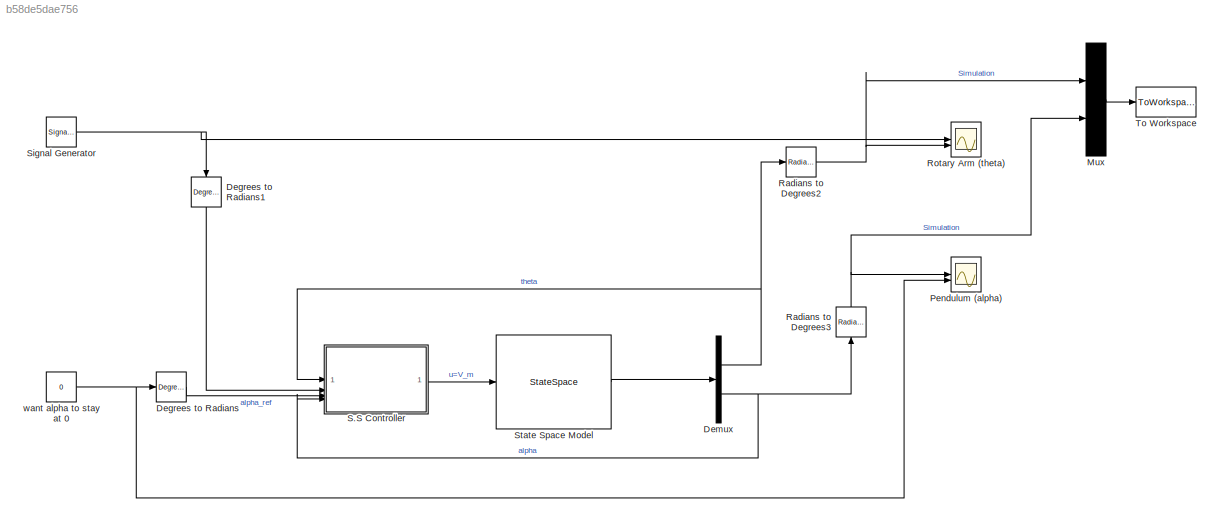
MODEL slx_b58de5dae756
KIND model
CONFIG AbsTol = auto
CONFIG EnableMultiTasking = on
CONFIG FixedStep = 0.002
CONFIG MaxStep = auto
CONFIG MinStep = auto
CONFIG RelTol = 1e-3
CONFIG SampleTimeConstraint = Unconstrained
CONFIG SolverName = ode1
CONFIG StartTime = 0.0
CONFIG StopTime = 80
BLOCK [Reference] Degrees to Radians  REF=simulink_extras/Transformations/Degrees to
Radians
  SourceBlock = simulink_extras/Transformations/Degrees to\nRadians
  SourceType = DegreesToRadians
BLOCK [Reference] Degrees to Radians1  REF=simulink_extras/Transformations/Degrees to
Radians
  NameLocation = left
  SourceBlock = simulink_extras/Transformations/Degrees to\nRadians
  SourceType = DegreesToRadians
BLOCK [Demux] Demux
  Outputs = 2
BLOCK [Mux] Mux
  DisplayOption = bar
  Inputs = 2
BLOCK [Scope] Pendulum (alpha)
  ActiveDisplayYMaximum = 75.172180728788376
  ActiveDisplayYMinimum = -73.031542967109559
  DataLoggingDecimateData = on
  DataLoggingDecimation = 1
  DataLoggingLimitDataPoints = on
  DataLoggingMaxPoints = 50000
  DataLoggingSaveFormat = Structure With Time
  Floating = off
  GraphicalSettings = {"AxesScalingProperties":{"AlignXAxis":"Center","AlignYAxis":"Center","AutoScaleXAxisLimits":false,"AxesScaling":"Manual","AxesScalingNumUpdates":10,"ExpandOnly":true,"ScaleAxesLimitsAtStop":false,"XAxisDataRange":100,"YAxisDataRange":80},"DisplayProperties":{"ColorOrder":["auto","auto","auto","auto","auto","auto","auto","auto","auto","auto","auto","auto","auto","auto","auto","auto","auto","auto",...<+2139ch>
  MultipleDisplayCache = [{"MaxYLimMag":40.97753,"MaxYLimReal":75.172180728788376,"MinYLimMag":0,"MinYLimReal":-73.031542967109559,"PlotAsMagnitudePhase":false,"ShowGrid":true,"ShowLegend":true,"Title":"%<SignalLabel>","YLabel":""}]
  NumInputPorts = 2
  ScopeFrameLocation = window
  ShowLegend = on
  TimeSpan = 40
  Visible = on
  WasSavedAsWebScope = on
  WindowPosition = [0.000000,36.000000,1920.000000,1009.000000,]
BLOCK [Reference] Radians to Degrees2  REF=simulink_extras/Transformations/Radians
to Degrees
  SourceBlock = simulink_extras/Transformations/Radians\nto Degrees
  SourceType = RadiansToDegrees
BLOCK [Reference] Radians to Degrees3  REF=simulink_extras/Transformations/Radians
to Degrees
  NameLocation = right
  SourceBlock = simulink_extras/Transformations/Radians\nto Degrees
  SourceType = RadiansToDegrees
BLOCK [Scope] Rotary Arm (theta)
  ActiveDisplayYMaximum = 30.3214691580459
  ActiveDisplayYMinimum = 20.02501530407962
  DataLoggingDecimateData = on
  DataLoggingDecimation = 1
  DataLoggingLimitDataPoints = on
  DataLoggingMaxPoints = 50000
  DataLoggingSaveFormat = Structure With Time
  DataLoggingVariableName = ScopeData1
  Floating = off
  GraphicalSettings = {"Style":{"BackgroundColor":[0.12941176470588237,0.12941176470588237,0.12941176470588237],"AxesColor":[0.07058823529411765,0.07058823529411765,0.07058823529411765],"LabelsColor":[0.8509803921568627,0.8509803921568627,0.8509803921568627],"PreserveColors":false,"Visible":[true,true],"LineStyle":["-","-"],"LineWidth":[1.5,1.5],"BarWidth":[0.9,0.9],"LineColor":["auto","auto"],"LineFaceAlpha":[1,1],"Li...<+2110ch>
  MultipleDisplayCache = [{"MaxYLimMag":50.80078,"MaxYLimReal":30.3214691580459,"MinYLimMag":0,"MinYLimReal":20.02501530407962,"PlotAsMagnitudePhase":false,"ShowGrid":true,"ShowLegend":true,"Title":"%<SignalLabel>","YLabel":""}]
  NumInputPorts = 2
  ScopeFrameLocation = window
  ShowLegend = on
  TimeSpan = 40
  Visible = on
  WasSavedAsWebScope = on
  WindowPosition = [1088.000000,449.000000,763.000000,508.000000,]
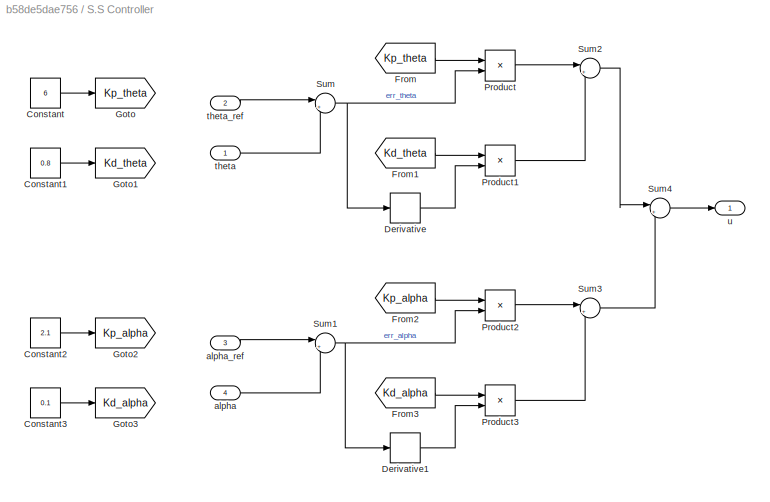
BLOCK [SubSystem] S.S Controller
BLOCK [Constant] S.S Controller/Constant
  Value = 6
BLOCK [Constant] S.S Controller/Constant1
  Value = 0.8
BLOCK [Constant] S.S Controller/Constant2
  Value = 2.1
BLOCK [Constant] S.S Controller/Constant3
  Value = 0.1
BLOCK [Derivative] S.S Controller/Derivative
BLOCK [Derivative] S.S Controller/Derivative1
BLOCK [From] S.S Controller/From
  GotoTag = Kp_theta
BLOCK [From] S.S Controller/From1
  GotoTag = Kd_theta
BLOCK [From] S.S Controller/From2
  GotoTag = Kp_alpha
BLOCK [From] S.S Controller/From3
  GotoTag = Kd_alpha
BLOCK [Goto] S.S Controller/Goto
  GotoTag = Kp_theta
BLOCK [Goto] S.S Controller/Goto1
  GotoTag = Kd_theta
BLOCK [Goto] S.S Controller/Goto2
  GotoTag = Kp_alpha
BLOCK [Goto] S.S Controller/Goto3
  GotoTag = Kd_alpha
BLOCK [Product] S.S Controller/Product
BLOCK [Product] S.S Controller/Product1
BLOCK [Product] S.S Controller/Product2
BLOCK [Product] S.S Controller/Product3
BLOCK [Sum] S.S Controller/Sum
  Inputs = |+-
BLOCK [Sum] S.S Controller/Sum1
  Inputs = |+-
BLOCK [Sum] S.S Controller/Sum2
  Inputs = |++
BLOCK [Sum] S.S Controller/Sum3
  Inputs = |++
BLOCK [Sum] S.S Controller/Sum4
  Inputs = |++
BLOCK [Inport] S.S Controller/alpha
  Port = 4
BLOCK [Inport] S.S Controller/alpha_ref
  Port = 3
BLOCK [Inport] S.S Controller/theta
BLOCK [Inport] S.S Controller/theta_ref
  Port = 2
BLOCK [Outport] S.S Controller/u
BLOCK [SignalGenerator] Signal Generator
  Amplitude = 25
  Frequency = 0.05
  WaveForm = square
BLOCK [StateSpace] State Space Model
  A = A1
  B = B1
  C = C1
  D = D1
  InitialCondition = 0
BLOCK [ToWorkspace] To Workspace
  MaxDataPoints = inf
  SampleTime = -1
  SaveFormat = Structure With Time
  VariableName = simout
BLOCK [Constant] want alpha to stay at 0
  Value = 0
LINE Degrees to Radians1:1 -> S.S Controller:2
LINE Degrees to Radians:1 -> S.S Controller:3
NET Demux:1 -> Radians to Degrees2:1, S.S Controller:1
NET Demux:2 -> Radians to Degrees3:1, S.S Controller:4
LINE Mux:1 -> To Workspace:1
NET Radians to Degrees2:1 -> Mux:1, Rotary Arm (theta):2
NET Radians to Degrees3:1 -> Mux:2, Pendulum (alpha):1
LINE S.S Controller/Constant1:1 -> S.S Controller/Goto1:1
LINE S.S Controller/Constant2:1 -> S.S Controller/Goto2:1
LINE S.S Controller/Constant3:1 -> S.S Controller/Goto3:1
LINE S.S Controller/Constant:1 -> S.S Controller/Goto:1
LINE S.S Controller/Derivative1:1 -> S.S Controller/Product3:2
LINE S.S Controller/Derivative:1 -> S.S Controller/Product1:2
LINE S.S Controller/From1:1 -> S.S Controller/Product1:1
LINE S.S Controller/From2:1 -> S.S Controller/Product2:1
LINE S.S Controller/From3:1 -> S.S Controller/Product3:1
LINE S.S Controller/From:1 -> S.S Controller/Product:1
LINE S.S Controller/Product1:1 -> S.S Controller/Sum2:2
LINE S.S Controller/Product2:1 -> S.S Controller/Sum3:1
LINE S.S Controller/Product3:1 -> S.S Controller/Sum3:2
LINE S.S Controller/Product:1 -> S.S Controller/Sum2:1
NET S.S Controller/Sum1:1 -> S.S Controller/Derivative1:1, S.S Controller/Product2:2
LINE S.S Controller/Sum2:1 -> S.S Controller/Sum4:1
LINE S.S Controller/Sum3:1 -> S.S Controller/Sum4:2
LINE S.S Controller/Sum4:1 -> S.S Controller/u:1
NET S.S Controller/Sum:1 -> S.S Controller/Derivative:1, S.S Controller/Product:2
LINE S.S Controller/alpha:1 -> S.S Controller/Sum1:2
LINE S.S Controller/alpha_ref:1 -> S.S Controller/Sum1:1
LINE S.S Controller/theta:1 -> S.S Controller/Sum:2
LINE S.S Controller/theta_ref:1 -> S.S Controller/Sum:1
LINE S.S Controller:1 -> State Space Model:1
NET Signal Generator:1 -> Degrees to Radians1:1, Rotary Arm (theta):1
LINE State Space Model:1 -> Demux:1
NET want alpha to stay at 0:1 -> Degrees to Radians:1, Pendulum (alpha):2
note: NET lines group one-source signal fan-out (src -> all destinations, sorted); 1:1 wires keep LINE
